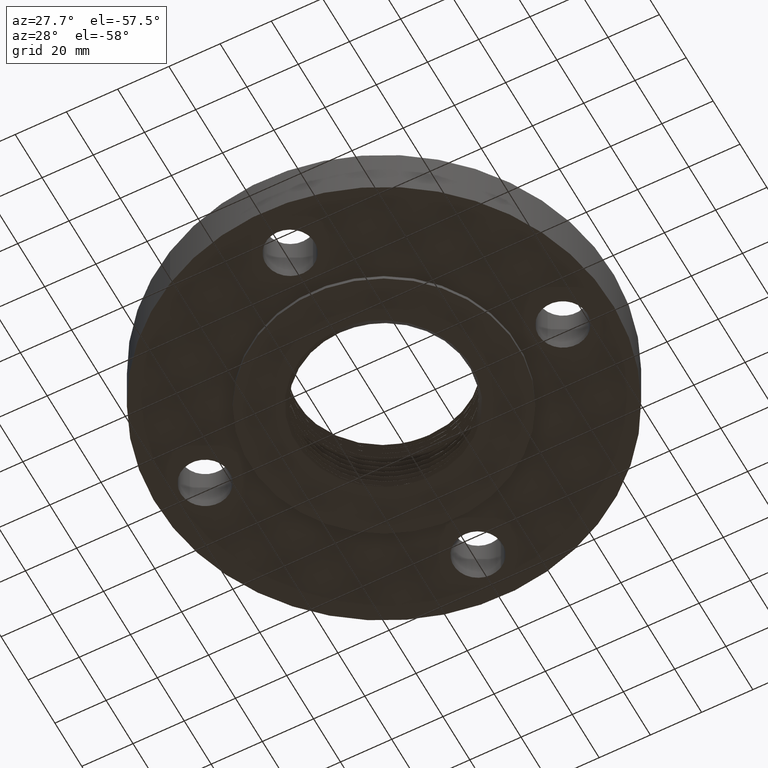
[diagram: clean part render]
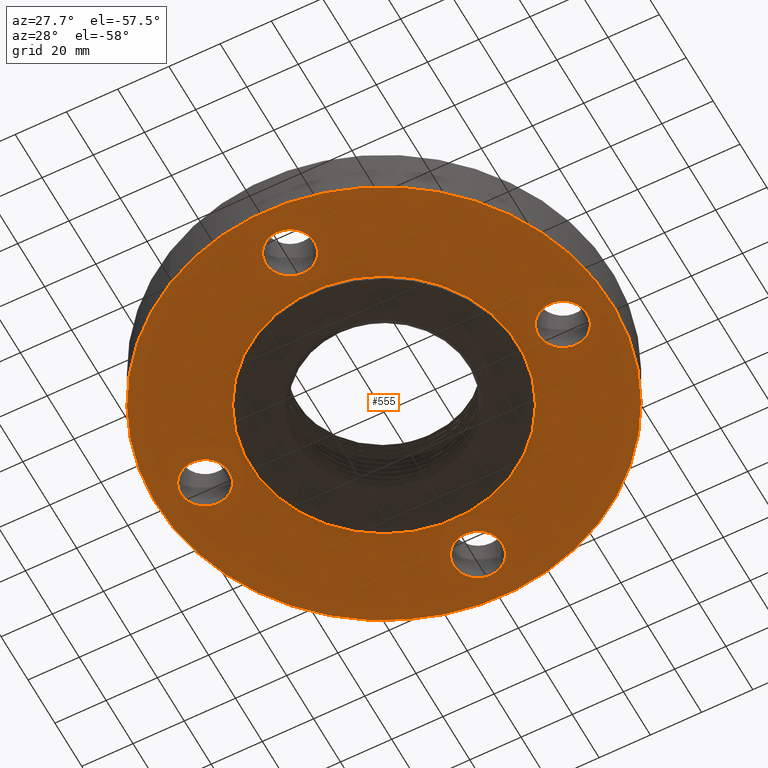
[diagram: same view with one face highlighted and labeled with its STEP entity id]
A machine part, auxiliary view. The second image highlights one B-rep face of the part: STEP entity #555.
In plain terms, the highlighted planar face has unit normal (0, 0, -1).
Its self-contained STEP definition (entity closure, byte-faithful):
#329=AXIS2_PLACEMENT_3D('Circle Axis2P3D',#327,#328,$) ;
#355=AXIS2_PLACEMENT_3D('Circle Axis2P3D',#353,#354,$) ;
#386=AXIS2_PLACEMENT_3D('Circle Axis2P3D',#384,#385,$) ;
#412=AXIS2_PLACEMENT_3D('Circle Axis2P3D',#410,#411,$) ;
#443=AXIS2_PLACEMENT_3D('Circle Axis2P3D',#441,#442,$) ;
#469=AXIS2_PLACEMENT_3D('Circle Axis2P3D',#467,#468,$) ;
#487=AXIS2_PLACEMENT_3D('Plane Axis2P3D',#484,#485,#486) ;
#491=AXIS2_PLACEMENT_3D('Circle Axis2P3D',#489,#490,$) ;
#500=AXIS2_PLACEMENT_3D('Circle Axis2P3D',#498,#499,$) ;
#509=AXIS2_PLACEMENT_3D('Circle Axis2P3D',#507,#508,$) ;
#518=AXIS2_PLACEMENT_3D('Circle Axis2P3D',#516,#517,$) ;
#527=AXIS2_PLACEMENT_3D('Circle Axis2P3D',#525,#526,$) ;
#536=AXIS2_PLACEMENT_3D('Circle Axis2P3D',#534,#535,$) ;
#322=CARTESIAN_POINT('Vertex',(-0.179784576977,-3.07909346072,0.)) ;
#327=CARTESIAN_POINT('Axis2P3D Location',(-3.91093534219E-016,-2.75000000001,0.)) ;
#331=CARTESIAN_POINT('Vertex',(0.179784576977,-2.4209065393,0.)) ;
#353=CARTESIAN_POINT('Axis2P3D Location',(-3.91093534219E-016,-2.75000000001,0.)) ;
#379=CARTESIAN_POINT('Vertex',(-3.07909346072,0.179784576977,0.)) ;
#384=CARTESIAN_POINT('Axis2P3D Location',(-2.75000000001,-3.36777869767E-016,0.)) ;
#388=CARTESIAN_POINT('Vertex',(-2.4209065393,-0.179784576977,0.)) ;
#410=CARTESIAN_POINT('Axis2P3D Location',(-2.75000000001,-3.36777869767E-016,0.)) ;
#436=CARTESIAN_POINT('Vertex',(0.179784576977,3.07909346072,0.)) ;
#441=CARTESIAN_POINT('Axis2P3D Location',(-5.0516680465E-016,2.75000000001,0.)) ;
#445=CARTESIAN_POINT('Vertex',(-0.179784576977,2.4209065393,0.)) ;
#467=CARTESIAN_POINT('Axis2P3D Location',(-5.0516680465E-016,2.75000000001,0.)) ;
#484=CARTESIAN_POINT('Axis2P3D Location',(0.,2.06000000001,0.)) ;
#489=CARTESIAN_POINT('Axis2P3D Location',(0.,0.,0.)) ;
#493=CARTESIAN_POINT('Vertex',(-1.67798938512,-3.07153896663,4.89547160465E-016)) ;
#495=CARTESIAN_POINT('Vertex',(1.67798938512,3.07153896663,4.89547160465E-016)) ;
#498=CARTESIAN_POINT('Axis2P3D Location',(0.,0.,0.)) ;
#507=CARTESIAN_POINT('Axis2P3D Location',(2.75000000001,0.,0.)) ;
#511=CARTESIAN_POINT('Vertex',(3.07909346072,-0.179784576977,0.)) ;
#513=CARTESIAN_POINT('Vertex',(2.4209065393,0.179784576977,0.)) ;
#516=CARTESIAN_POINT('Axis2P3D Location',(2.75000000001,2.79741234551E-016,0.)) ;
#525=CARTESIAN_POINT('Axis2P3D Location',(0.,0.,0.)) ;
#529=CARTESIAN_POINT('Vertex',(0.987616609529,1.8078200775,2.79741234551E-016)) ;
#531=CARTESIAN_POINT('Vertex',(-0.987616609529,-1.8078200775,2.79741234551E-016)) ;
#534=CARTESIAN_POINT('Axis2P3D Location',(0.,0.,0.)) ;
#328=DIRECTION('Axis2P3D Direction',(0.,-0.,-0.0393700787402)) ;
#354=DIRECTION('Axis2P3D Direction',(0.,-0.,-0.0393700787402)) ;
#385=DIRECTION('Axis2P3D Direction',(-0.,0.,-0.0393700787402)) ;
#411=DIRECTION('Axis2P3D Direction',(-0.,0.,-0.0393700787402)) ;
#442=DIRECTION('Axis2P3D Direction',(0.,0.,-0.0393700787402)) ;
#468=DIRECTION('Axis2P3D Direction',(0.,0.,-0.0393700787402)) ;
#485=DIRECTION('Axis2P3D Direction',(0.,0.,-0.0393700787402)) ;
#486=DIRECTION('Axis2P3D XDirection',(0.0393700787402,0.,0.)) ;
#490=DIRECTION('Axis2P3D Direction',(0.,0.,-0.0393700787402)) ;
#499=DIRECTION('Axis2P3D Direction',(0.,0.,-0.0393700787402)) ;
#508=DIRECTION('Axis2P3D Direction',(0.,0.,-0.0393700787402)) ;
#517=DIRECTION('Axis2P3D Direction',(0.,0.,-0.0393700787402)) ;
#526=DIRECTION('Axis2P3D Direction',(0.,0.,-0.0393700787402)) ;
#535=DIRECTION('Axis2P3D Direction',(0.,0.,-0.0393700787402)) ;
#504=ORIENTED_EDGE('',*,*,#497,.T.) ;
#505=ORIENTED_EDGE('',*,*,#502,.T.) ;
#522=ORIENTED_EDGE('',*,*,#515,.F.) ;
#523=ORIENTED_EDGE('',*,*,#520,.F.) ;
#540=ORIENTED_EDGE('',*,*,#533,.F.) ;
#541=ORIENTED_EDGE('',*,*,#538,.F.) ;
#544=ORIENTED_EDGE('',*,*,#357,.F.) ;
#545=ORIENTED_EDGE('',*,*,#333,.F.) ;
#548=ORIENTED_EDGE('',*,*,#414,.F.) ;
#549=ORIENTED_EDGE('',*,*,#390,.F.) ;
#552=ORIENTED_EDGE('',*,*,#471,.F.) ;
#553=ORIENTED_EDGE('',*,*,#447,.F.) ;
#524=FACE_BOUND('',#521,.T.) ;
#542=FACE_BOUND('',#539,.T.) ;
#546=FACE_BOUND('',#543,.T.) ;
#550=FACE_BOUND('',#547,.T.) ;
#554=FACE_BOUND('',#551,.T.) ;
#555=ADVANCED_FACE('PartBody',(#506,#524,#542,#546,#550,#554),#488,.T.) ;
#330=CIRCLE('generated circle',#329,0.375000000002) ;
#356=CIRCLE('generated circle',#355,0.375000000002) ;
#387=CIRCLE('generated circle',#386,0.375000000001) ;
#413=CIRCLE('generated circle',#412,0.375000000001) ;
#444=CIRCLE('generated circle',#443,0.375000000002) ;
#470=CIRCLE('generated circle',#469,0.375000000002) ;
#492=CIRCLE('generated circle',#491,3.50000000001) ;
#501=CIRCLE('generated circle',#500,3.50000000001) ;
#510=CIRCLE('generated circle',#509,0.375000000002) ;
#519=CIRCLE('generated circle',#518,0.375000000002) ;
#528=CIRCLE('generated circle',#527,2.06000000001) ;
#537=CIRCLE('generated circle',#536,2.06000000001) ;
#333=EDGE_CURVE('',#323,#332,#330,.T.) ;
#357=EDGE_CURVE('',#332,#323,#356,.T.) ;
#390=EDGE_CURVE('',#380,#389,#387,.T.) ;
#414=EDGE_CURVE('',#389,#380,#413,.T.) ;
#447=EDGE_CURVE('',#437,#446,#444,.T.) ;
#471=EDGE_CURVE('',#446,#437,#470,.T.) ;
#497=EDGE_CURVE('',#494,#496,#492,.T.) ;
#502=EDGE_CURVE('',#496,#494,#501,.T.) ;
#515=EDGE_CURVE('',#512,#514,#510,.T.) ;
#520=EDGE_CURVE('',#514,#512,#519,.T.) ;
#533=EDGE_CURVE('',#530,#532,#528,.T.) ;
#538=EDGE_CURVE('',#532,#530,#537,.T.) ;
#503=EDGE_LOOP('',(#504,#505)) ;
#521=EDGE_LOOP('',(#522,#523)) ;
#539=EDGE_LOOP('',(#540,#541)) ;
#543=EDGE_LOOP('',(#544,#545)) ;
#547=EDGE_LOOP('',(#548,#549)) ;
#551=EDGE_LOOP('',(#552,#553)) ;
#506=FACE_OUTER_BOUND('',#503,.T.) ;
#488=PLANE('',#487) ;
#323=VERTEX_POINT('',#322) ;
#332=VERTEX_POINT('',#331) ;
#380=VERTEX_POINT('',#379) ;
#389=VERTEX_POINT('',#388) ;
#437=VERTEX_POINT('',#436) ;
#446=VERTEX_POINT('',#445) ;
#494=VERTEX_POINT('',#493) ;
#496=VERTEX_POINT('',#495) ;
#512=VERTEX_POINT('',#511) ;
#514=VERTEX_POINT('',#513) ;
#530=VERTEX_POINT('',#529) ;
#532=VERTEX_POINT('',#531) ;